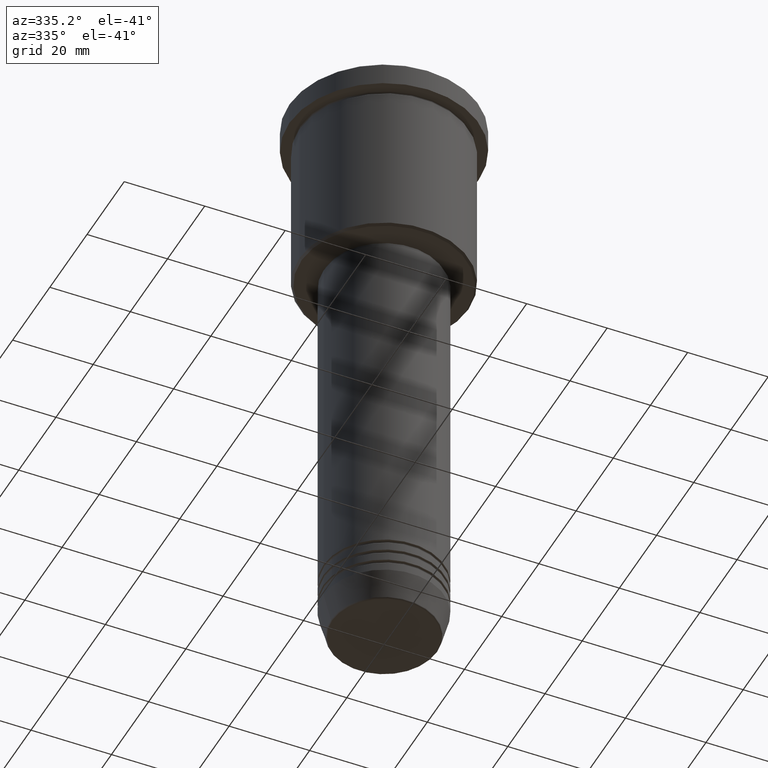
[diagram: clean part render]
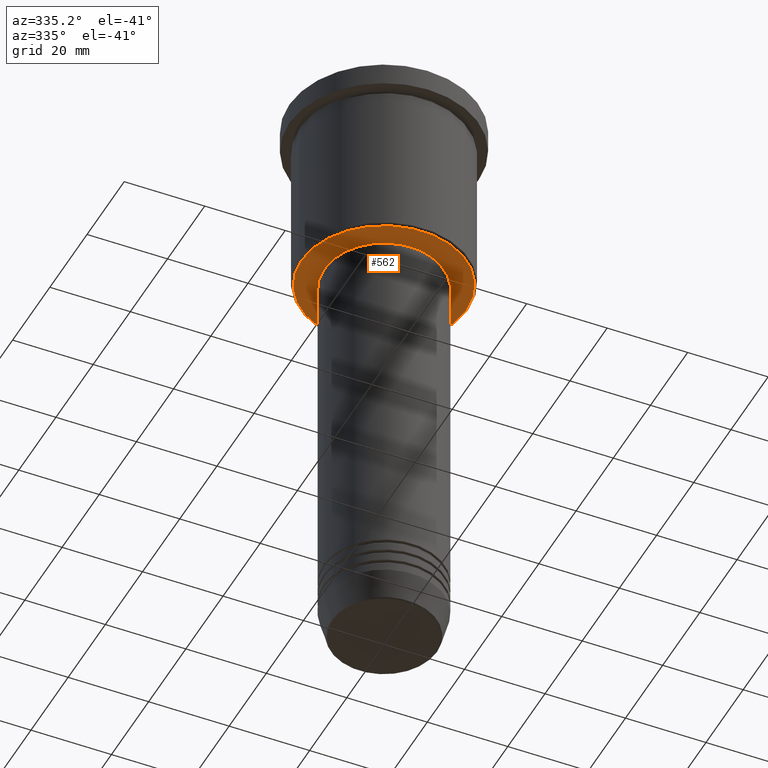
[diagram: same view with one face highlighted and labeled with its STEP entity id]
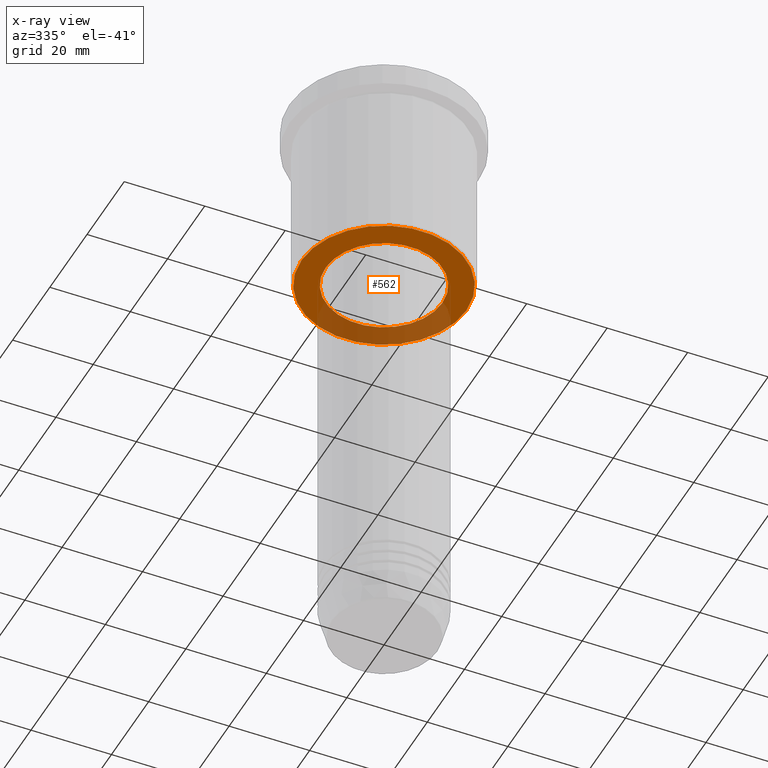
[diagram: x-ray of the same camera — body ghosted, the highlighted face saturated]
A machine part, auxiliary view. The second image highlights one B-rep face of the part: STEP entity #562.
The next image is the same camera in x-ray: the body ghosted, the highlighted face saturated — about 31% of this face is hidden behind the body in this view.
In plain terms, the highlighted planar face has unit normal (0, 0, -1).
Its self-contained STEP definition (entity closure, byte-faithful):
#22 = EDGE_CURVE ( 'NONE', #706, #70, #743, .T. ) ;
#54 = VERTEX_POINT ( 'NONE', #500 ) ;
#70 = VERTEX_POINT ( 'NONE', #605 ) ;
#71 = DIRECTION ( 'NONE',  ( 0.000000000000000000, 0.000000000000000000, -1.000000000000000000 ) ) ;
#97 = CARTESIAN_POINT ( 'NONE',  ( 0.000000000000000000, 0.000000000000000000, -45.99999999999998579 ) ) ;
#104 = AXIS2_PLACEMENT_3D ( 'NONE', #230, #672, #613 ) ;
#109 = CIRCLE ( 'NONE', #718, 20.50000000000003197 ) ;
#138 = CARTESIAN_POINT ( 'NONE',  ( 0.000000000000000000, 0.000000000000000000, -45.99999999999998579 ) ) ;
#163 = ORIENTED_EDGE ( 'NONE', *, *, #883, .T. ) ;
#209 = CARTESIAN_POINT ( 'NONE',  ( 0.000000000000000000, 0.000000000000000000, -45.99999999999998579 ) ) ;
#227 = VERTEX_POINT ( 'NONE', #1180 ) ;
#228 = PLANE ( 'NONE',  #540 ) ;
#230 = CARTESIAN_POINT ( 'NONE',  ( 0.000000000000000000, 0.000000000000000000, -45.99999999999998579 ) ) ;
#248 = FACE_OUTER_BOUND ( 'NONE', #899, .T. ) ;
#308 = DIRECTION ( 'NONE',  ( 0.000000000000000000, 0.000000000000000000, -1.000000000000000000 ) ) ;
#341 = DIRECTION ( 'NONE',  ( -1.000000000000000000, 0.000000000000000000, -0.000000000000000000 ) ) ;
#417 = DIRECTION ( 'NONE',  ( -0.000000000000000000, -0.000000000000000000, 1.000000000000000000 ) ) ;
#457 = CIRCLE ( 'NONE', #624, 20.50000000000003197 ) ;
#500 = CARTESIAN_POINT ( 'NONE',  ( -20.50000000000003197, 2.541142108230759846E-15, -45.99999999999998579 ) ) ;
#510 = CARTESIAN_POINT ( 'NONE',  ( -14.49999999999999822, 1.775737858763662015E-15, -45.99999999999998579 ) ) ;
#519 = DIRECTION ( 'NONE',  ( 1.000000000000000000, 0.000000000000000000, 0.000000000000000000 ) ) ;
#540 = AXIS2_PLACEMENT_3D ( 'NONE', #612, #71, #341 ) ;
#562 = ADVANCED_FACE ( 'NONE', ( #248, #1090 ), #228, .T. ) ;
#605 = CARTESIAN_POINT ( 'NONE',  ( 14.49999999999999822, 0.000000000000000000, -45.99999999999998579 ) ) ;
#612 = CARTESIAN_POINT ( 'NONE',  ( 0.000000000000000000, 21.00000000000000000, -45.99999999999998579 ) ) ;
#613 = DIRECTION ( 'NONE',  ( 1.000000000000000000, 0.000000000000000000, 0.000000000000000000 ) ) ;
#624 = AXIS2_PLACEMENT_3D ( 'NONE', #209, #308, #772 ) ;
#672 = DIRECTION ( 'NONE',  ( -0.000000000000000000, -0.000000000000000000, 1.000000000000000000 ) ) ;
#704 = EDGE_CURVE ( 'NONE', #54, #227, #457, .T. ) ;
#706 = VERTEX_POINT ( 'NONE', #510 ) ;
#718 = AXIS2_PLACEMENT_3D ( 'NONE', #97, #926, #1093 ) ;
#731 = ORIENTED_EDGE ( 'NONE', *, *, #704, .T. ) ;
#743 = CIRCLE ( 'NONE', #104, 14.49999999999999822 ) ;
#772 = DIRECTION ( 'NONE',  ( -1.000000000000000000, 0.000000000000000000, 0.000000000000000000 ) ) ;
#798 = EDGE_LOOP ( 'NONE', ( #163, #859 ) ) ;
#808 = CIRCLE ( 'NONE', #985, 14.49999999999999822 ) ;
#859 = ORIENTED_EDGE ( 'NONE', *, *, #22, .T. ) ;
#883 = EDGE_CURVE ( 'NONE', #70, #706, #808, .T. ) ;
#899 = EDGE_LOOP ( 'NONE', ( #1049, #731 ) ) ;
#926 = DIRECTION ( 'NONE',  ( 0.000000000000000000, 0.000000000000000000, -1.000000000000000000 ) ) ;
#985 = AXIS2_PLACEMENT_3D ( 'NONE', #138, #417, #519 ) ;
#1049 = ORIENTED_EDGE ( 'NONE', *, *, #1116, .T. ) ;
#1090 = FACE_BOUND ( 'NONE', #798, .T. ) ;
#1093 = DIRECTION ( 'NONE',  ( -1.000000000000000000, 0.000000000000000000, 0.000000000000000000 ) ) ;
#1116 = EDGE_CURVE ( 'NONE', #227, #54, #109, .T. ) ;
#1180 = CARTESIAN_POINT ( 'NONE',  ( 20.50000000000003197, 0.000000000000000000, -45.99999999999998579 ) ) ;